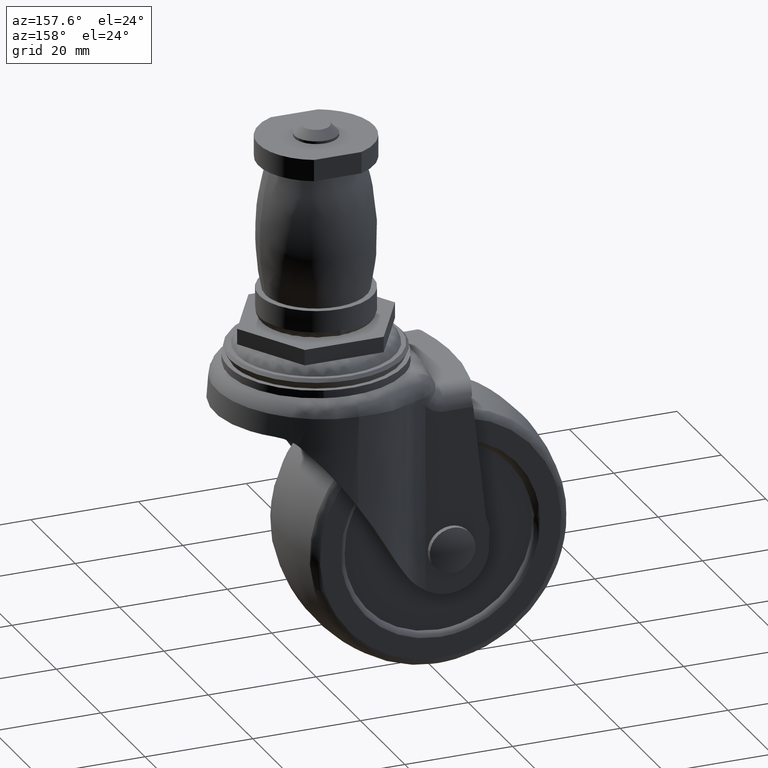
[diagram: clean part render]
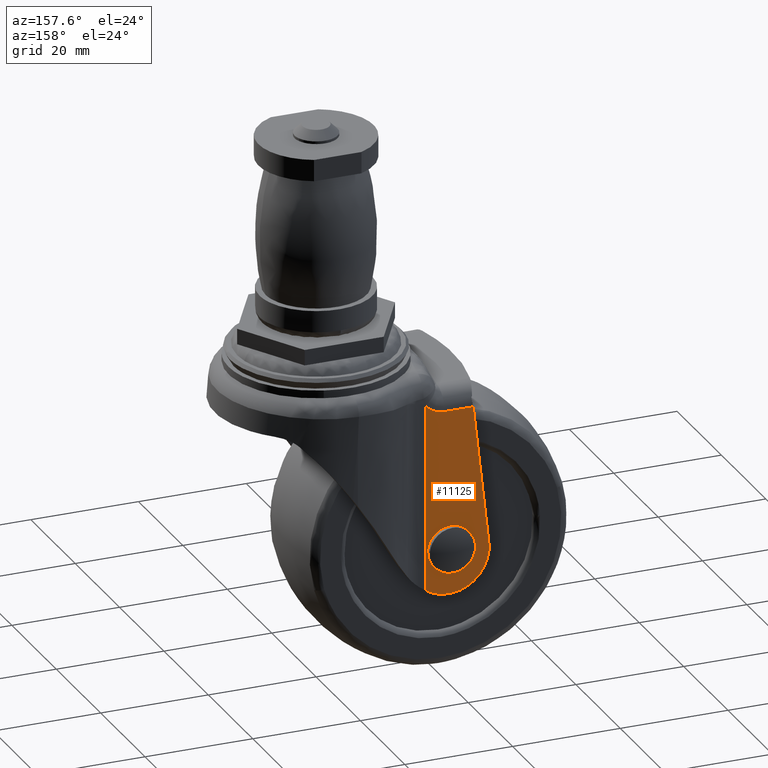
[diagram: same view with one face highlighted and labeled with its STEP entity id]
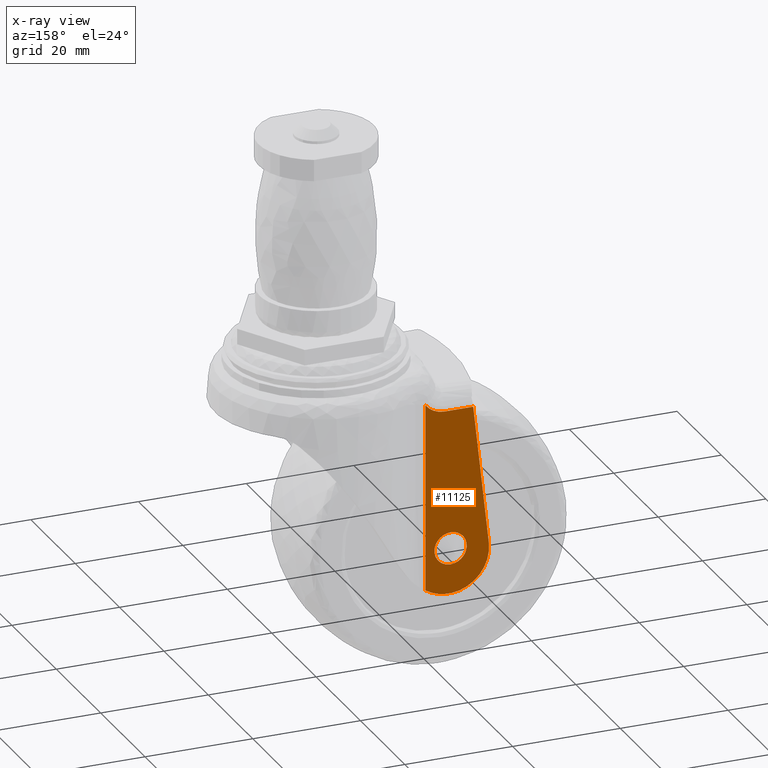
[diagram: x-ray of the same camera — body ghosted, the highlighted face saturated]
A machine part, auxiliary view. The second image highlights one B-rep face of the part: STEP entity #11125.
The next image is the same camera in x-ray: the body ghosted, the highlighted face saturated — about 0% of this face is hidden behind the body in this view.
In plain terms, the highlighted face is a freeform B-spline surface patch.
Its self-contained STEP definition (entity closure, byte-faithful):
#4131=CARTESIAN_POINT('',(-16.020971420945369,14.500240000000000,-39.646396295724543));
#4132=VERTEX_POINT('',#4131);
#4138=CARTESIAN_POINT('',(-19.0,14.500240000000000,-43.000499000000019));
#4139=VERTEX_POINT('',#4138);
#4140=CARTESIAN_POINT('',(-16.020971420945369,14.500240000000002,-39.646396295724550));
#4141=CARTESIAN_POINT('',(-16.000000000000085,14.500240000000000,-39.822826640735848));
#4142=CARTESIAN_POINT('',(-16.000000000000082,14.500240000000000,-40.000499000000097));
#4143=CARTESIAN_POINT('',(-16.000000000000082,14.500240000000009,-43.000499000000012));
#4144=CARTESIAN_POINT('',(-19.0,14.500240000000000,-43.000499000000019));
#4152=(BOUNDED_CURVE()B_SPLINE_CURVE(2,(#4140,#4141,#4142,#4143,#4144),.UNSPECIFIED.,.F.,.U.)B_SPLINE_CURVE_WITH_KNOTS((3,2,3),(0.229562473481005,0.250000000000000,0.500000000000000),.UNSPECIFIED.)CURVE()GEOMETRIC_REPRESENTATION_ITEM()RATIONAL_B_SPLINE_CURVE((0.956026754119991,0.976055948293065,1.0,0.707106781186548,1.0))REPRESENTATION_ITEM(''));
#4153=EDGE_CURVE('',#4132,#4139,#4152,.T.);
#4155=CARTESIAN_POINT('',(-21.994404395263050,14.500240000000000,-40.183644618645097));
#4156=VERTEX_POINT('',#4155);
#4157=CARTESIAN_POINT('',(-19.0,14.500240000000000,-43.000499000000019));
#4158=CARTESIAN_POINT('',(-21.822118200640624,14.500240000000003,-43.000499000000026));
#4159=CARTESIAN_POINT('',(-21.994404395263047,14.500240000000000,-40.183644618645104));
#4167=(BOUNDED_CURVE()B_SPLINE_CURVE(2,(#4157,#4158,#4159),.UNSPECIFIED.,.F.,.U.)B_SPLINE_CURVE_WITH_KNOTS((3,3),(0.500000000000000,0.739332962237306),.UNSPECIFIED.)CURVE()GEOMETRIC_REPRESENTATION_ITEM()RATIONAL_B_SPLINE_CURVE((1.0,0.719603993288627,0.976072041663210))REPRESENTATION_ITEM(''));
#4168=EDGE_CURVE('',#4139,#4156,#4167,.T.);
#4242=CARTESIAN_POINT('',(-19.0,14.500240000000000,-37.000499000000183));
#4243=VERTEX_POINT('',#4242);
#4244=CARTESIAN_POINT('',(-21.994404395263047,14.500240000000003,-40.183644618645104));
#4245=CARTESIAN_POINT('',(-21.999999999999915,14.500240000000000,-40.092157289936416));
#4246=CARTESIAN_POINT('',(-21.999999999999918,14.500240000000000,-40.000499000000097));
#4247=CARTESIAN_POINT('',(-21.999999999999918,14.500240000000009,-37.000499000000175));
#4248=CARTESIAN_POINT('',(-19.0,14.500240000000000,-37.000499000000183));
#4256=(BOUNDED_CURVE()B_SPLINE_CURVE(2,(#4244,#4245,#4246,#4247,#4248),.UNSPECIFIED.,.F.,.U.)B_SPLINE_CURVE_WITH_KNOTS((3,2,3),(0.739332962237307,0.750000000000000,1.0),.UNSPECIFIED.)CURVE()GEOMETRIC_REPRESENTATION_ITEM()RATIONAL_B_SPLINE_CURVE((0.976072041663212,0.987502787897921,1.0,0.707106781186548,1.0))REPRESENTATION_ITEM(''));
#4257=EDGE_CURVE('',#4156,#4243,#4256,.T.);
#4259=CARTESIAN_POINT('',(-19.0,14.500240000000000,-37.000499000000183));
#4260=CARTESIAN_POINT('',(-16.335476422695944,14.500240000000007,-37.000499000000183));
#4261=CARTESIAN_POINT('',(-16.020971420945369,14.500240000000002,-39.646396295724550));
#4269=(BOUNDED_CURVE()B_SPLINE_CURVE(2,(#4259,#4260,#4261),.UNSPECIFIED.,.F.,.U.)B_SPLINE_CURVE_WITH_KNOTS((3,3),(0.0,0.229562473481005),.UNSPECIFIED.)CURVE()GEOMETRIC_REPRESENTATION_ITEM()RATIONAL_B_SPLINE_CURVE((1.0,0.731050832893483,0.956026754119991))REPRESENTATION_ITEM(''));
#4270=EDGE_CURVE('',#4243,#4132,#4269,.T.);
#7818=CARTESIAN_POINT('',(-14.351389509793160,14.500240000000000,-12.355357293252419));
#7819=VERTEX_POINT('',#7818);
#8000=CARTESIAN_POINT('',(-17.872119485698050,14.500240000000000,-14.101519000000120));
#8001=VERTEX_POINT('',#8000);
#8033=CARTESIAN_POINT('',(-17.872119485698050,14.500240000000000,-14.101519000000099));
#8034=CARTESIAN_POINT('',(-17.700863526060228,14.500240000000000,-14.101519000000110));
#8035=CARTESIAN_POINT('',(-17.531450792253040,14.500240000000000,-14.091672956415319));
#8036=CARTESIAN_POINT('',(-17.196150783298911,14.500240000000000,-14.053148765741041));
#8037=CARTESIAN_POINT('',(-17.030264083564472,14.500240000000000,-14.024467544944381));
#8038=CARTESIAN_POINT('',(-16.702005608680160,14.500240000000000,-13.948329270199430));
#8039=CARTESIAN_POINT('',(-16.539633404250729,14.500240000000000,-13.900874509353351));
#8040=CARTESIAN_POINT('',(-16.298812268003470,14.500240000000000,-13.815071099990700));
#8041=CARTESIAN_POINT('',(-16.218808483072628,14.500240000000000,-13.783932925192209));
#8042=CARTESIAN_POINT('',(-16.061774417686021,14.500240000000000,-13.717510468194529));
#8043=CARTESIAN_POINT('',(-15.984523517611571,14.500240000000000,-13.682160215026631));
#8044=CARTESIAN_POINT('',(-15.756510837006161,14.500240000000000,-13.569791006644360));
#8045=CARTESIAN_POINT('',(-15.609476358145161,14.500240000000000,-13.486475088455981));
#8046=CARTESIAN_POINT('',(-15.325358650012539,14.500240000000000,-13.303031452080610));
#8047=CARTESIAN_POINT('',(-15.188273912001190,14.500240000000000,-13.202906282782619));
#8048=CARTESIAN_POINT('',(-14.990431844442380,14.500240000000000,-13.039566358831530));
#8049=CARTESIAN_POINT('',(-14.926033479608240,14.500240000000000,-12.983111452917640));
#8050=CARTESIAN_POINT('',(-14.801174026272740,14.500240000000000,-12.866949373901360));
#8051=CARTESIAN_POINT('',(-14.740579469691429,14.500240000000000,-12.807133307759480));
#8052=CARTESIAN_POINT('',(-14.564293189289060,14.500240000000010,-12.622487707199790));
#8053=CARTESIAN_POINT('',(-14.454078351992949,14.500240000000000,-12.492480154645730));
#8054=CARTESIAN_POINT('',(-14.351389509793179,14.500240000000000,-12.355357293252419));
#8055=B_SPLINE_CURVE_WITH_KNOTS('',3,(#8033,#8034,#8035,#8036,#8037,#8038,#8039,#8040,#8041,#8042,#8043,#8044,#8045,#8046,#8047,#8048,#8049,#8050,#8051,#8052,#8053,#8054),.UNSPECIFIED.,.F.,.U.,(4,2,2,2,2,2,2,2,2,2,4),(0.0,0.124999999999999,0.249999999999998,0.374999999999997,0.437499999999998,0.499999999999999,0.624999999999999,0.750000000000000,0.812500000000000,0.875000000000000,1.0),.UNSPECIFIED.);
#8056=EDGE_CURVE('',#8001,#7819,#8055,.T.);
#8249=CARTESIAN_POINT('',(-23.201319942602201,14.500240000000000,-14.101519000000120));
#8250=VERTEX_POINT('',#8249);
#8251=CARTESIAN_POINT('',(-23.201319942602201,14.500240000000000,-14.101519000000120));
#8252=CARTESIAN_POINT('',(-17.872119485698050,14.500240000000000,-14.101519000000120));
#8253=QUASI_UNIFORM_CURVE('',1,(#8251,#8252),.UNSPECIFIED.,.F.,.U.);
#8254=EDGE_CURVE('',#8250,#8001,#8253,.T.);
#9624=CARTESIAN_POINT('',(-14.351389509793160,14.500240000000000,-47.137314989502798));
#9625=VERTEX_POINT('',#9624);
#9641=CARTESIAN_POINT('',(-14.351389509793160,14.500240000000000,-12.355357293252419));
#9642=CARTESIAN_POINT('',(-14.351389509793160,14.500240000000000,-47.137314989502798));
#9643=QUASI_UNIFORM_CURVE('',1,(#9641,#9642),.UNSPECIFIED.,.F.,.U.);
#9644=EDGE_CURVE('',#7819,#9625,#9643,.T.);
#10772=CARTESIAN_POINT('',(-26.117611551857099,14.500240000000000,-40.254040198941098));
#10773=VERTEX_POINT('',#10772);
#10774=CARTESIAN_POINT('',(-26.117611551857099,14.500240000000000,-40.254040198941098));
#10775=CARTESIAN_POINT('',(-23.201319942602201,14.500240000000000,-14.101519000000120));
#10776=QUASI_UNIFORM_CURVE('',1,(#10774,#10775),.UNSPECIFIED.,.F.,.U.);
#10777=EDGE_CURVE('',#10773,#8250,#10776,.T.);
#10803=CARTESIAN_POINT('',(-15.371526078570501,14.500240000000000,-47.695787531531799));
#10804=VERTEX_POINT('',#10803);
#10812=CARTESIAN_POINT('',(-26.117611551857092,14.500240000000000,-40.254040198941098));
#10813=CARTESIAN_POINT('',(-26.524666950429690,14.500240000000003,-44.619840999164772));
#10814=CARTESIAN_POINT('',(-22.919908716751539,14.500240000000000,-47.116164055475870));
#10815=CARTESIAN_POINT('',(-19.315150483073385,14.500240000000003,-49.612487111786962));
#10816=CARTESIAN_POINT('',(-15.371526078570501,14.500240000000000,-47.695787531531799));
#10824=(BOUNDED_CURVE()B_SPLINE_CURVE(2,(#10812,#10813,#10814,#10815,#10816),.UNSPECIFIED.,.F.,.U.)B_SPLINE_CURVE_WITH_KNOTS((3,2,3),(0.0,0.500000000000000,1.0),.UNSPECIFIED.)CURVE()GEOMETRIC_REPRESENTATION_ITEM()RATIONAL_B_SPLINE_CURVE((1.0,0.863290739633807,1.0,0.863290739633807,1.0))REPRESENTATION_ITEM(''));
#10825=EDGE_CURVE('',#10773,#10804,#10824,.T.);
#10891=CARTESIAN_POINT('',(-15.371526078570520,14.500240000000000,-47.695787531531792));
#10892=CARTESIAN_POINT('',(-14.847910548632074,14.500240000000000,-47.441297402093589));
#10893=CARTESIAN_POINT('',(-14.351389509793140,14.500240000000000,-47.137314989502833));
#10901=(BOUNDED_CURVE()B_SPLINE_CURVE(2,(#10891,#10892,#10893),.UNSPECIFIED.,.F.,.U.)CURVE()GEOMETRIC_REPRESENTATION_ITEM()QUASI_UNIFORM_CURVE()RATIONAL_B_SPLINE_CURVE((1.0,0.998825203851347,1.0))REPRESENTATION_ITEM(''));
#10902=EDGE_CURVE('',#10804,#9625,#10901,.T.);
#11106=CARTESIAN_POINT('',(-26.737359539995499,14.500240000000000,-50.249892416725110));
#11107=CARTESIAN_POINT('',(-26.737359539995499,14.500240000000000,-10.552573374136980));
#11108=CARTESIAN_POINT('',(-13.762143751199380,14.500240000000000,-50.249892416725110));
#11109=CARTESIAN_POINT('',(-13.762143751199380,14.500240000000000,-10.552573374136980));
#11110=B_SPLINE_SURFACE_WITH_KNOTS('',1,1,((#11106,#11108),(#11107,#11109)),.UNSPECIFIED.,.F.,.F.,.U.,(2,2),(2,2),(0.0,39.697319042588127),(0.0,12.975215788796129),.UNSPECIFIED.);
#11111=ORIENTED_EDGE('',*,*,#8254,.T.);
#11112=ORIENTED_EDGE('',*,*,#8056,.T.);
#11113=ORIENTED_EDGE('',*,*,#9644,.T.);
#11114=ORIENTED_EDGE('',*,*,#10902,.F.);
#11115=ORIENTED_EDGE('',*,*,#10825,.F.);
#11116=ORIENTED_EDGE('',*,*,#10777,.T.);
#11117=EDGE_LOOP('',(#11111,#11112,#11113,#11114,#11115,#11116));
#11118=FACE_OUTER_BOUND('',#11117,.T.);
#11119=ORIENTED_EDGE('',*,*,#4168,.F.);
#11120=ORIENTED_EDGE('',*,*,#4153,.F.);
#11121=ORIENTED_EDGE('',*,*,#4270,.F.);
#11122=ORIENTED_EDGE('',*,*,#4257,.F.);
#11123=EDGE_LOOP('',(#11119,#11120,#11121,#11122));
#11124=FACE_BOUND('',#11123,.T.);
#11125=ADVANCED_FACE('',(#11118,#11124),#11110,.T.);